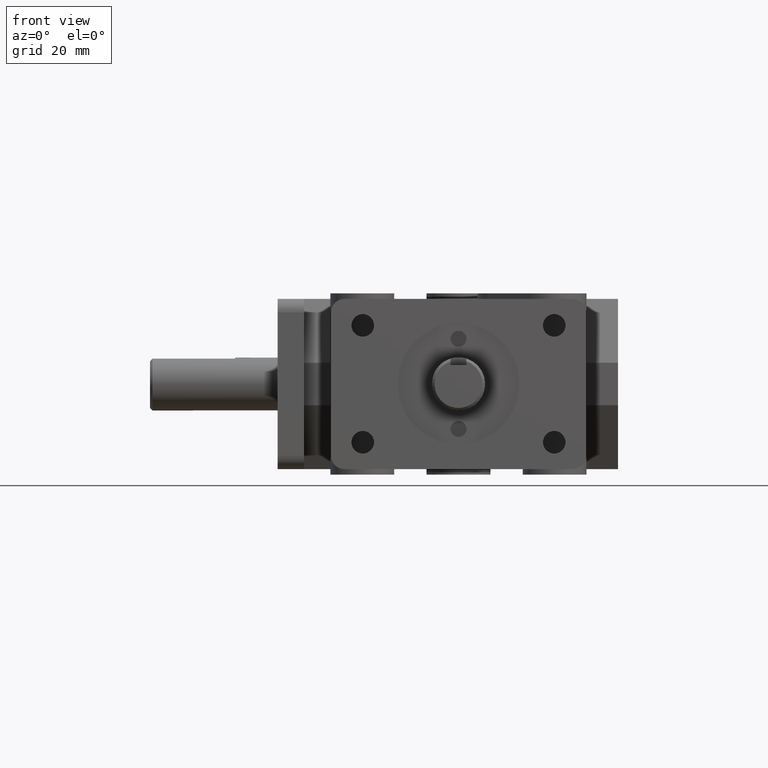
[diagram: clean part render]
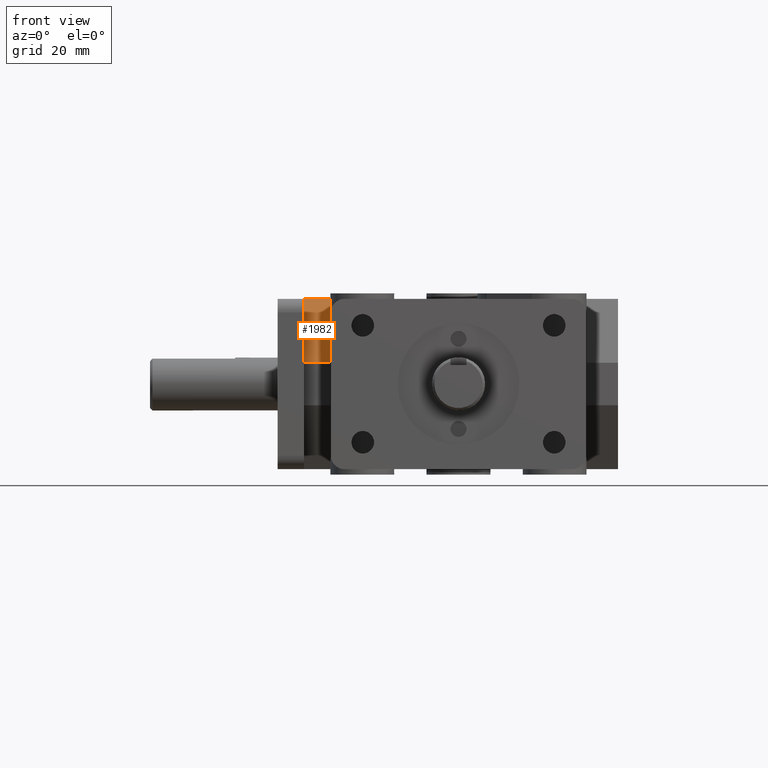
[diagram: same view with one face highlighted and labeled with its STEP entity id]
A machine part, front view. The second image highlights one B-rep face of the part: STEP entity #1982.
In plain terms, the highlighted planar face has unit normal (0, -0.866, 0.5).
Its self-contained STEP definition (entity closure, byte-faithful):
#97=PLANE('',#2178);
#200=FACE_OUTER_BOUND('',#329,.T.);
#329=EDGE_LOOP('',(#1675,#1676,#1677,#1678));
#416=LINE('',#2974,#607);
#433=LINE('',#3017,#624);
#527=LINE('',#3273,#718);
#528=LINE('',#3274,#719);
#607=VECTOR('',#2400,1.);
#624=VECTOR('',#2431,1.);
#718=VECTOR('',#2663,1.);
#719=VECTOR('',#2664,1.);
#909=VERTEX_POINT('',#2971);
#910=VERTEX_POINT('',#2973);
#929=VERTEX_POINT('',#3016);
#1010=VERTEX_POINT('',#3272);
#1108=EDGE_CURVE('',#910,#909,#416,.F.);
#1131=EDGE_CURVE('',#929,#910,#433,.T.);
#1255=EDGE_CURVE('',#1010,#929,#527,.F.);
#1256=EDGE_CURVE('',#909,#1010,#528,.T.);
#1675=ORIENTED_EDGE('',*,*,#1255,.T.);
#1676=ORIENTED_EDGE('',*,*,#1131,.T.);
#1677=ORIENTED_EDGE('',*,*,#1108,.T.);
#1678=ORIENTED_EDGE('',*,*,#1256,.T.);
#1982=ADVANCED_FACE('',(#200),#97,.T.);
#2178=AXIS2_PLACEMENT_3D('',#3271,#2661,#2662);
#2400=DIRECTION('',(0.,0.500000258168844,0.866025254730536));
#2431=DIRECTION('',(-1.,0.,0.));
#2661=DIRECTION('center_axis',(0.,-0.866025254730536,0.500000258168844));
#2662=DIRECTION('ref_axis',(0.,0.500000258168844,0.866025254730536));
#2663=DIRECTION('',(0.,-0.500000258168844,-0.866025254730536));
#2664=DIRECTION('',(1.,0.,0.));
#2971=CARTESIAN_POINT('',(-1.815,2.3125,0.25));
#2973=CARTESIAN_POINT('',(-1.815,2.745513,1.));
#2974=CARTESIAN_POINT('',(-1.815,2.29631407102174,0.221965167942549));
#3016=CARTESIAN_POINT('',(-1.505,2.745513,1.));
#3017=CARTESIAN_POINT('',(-0.9075,2.745513,1.));
#3271=CARTESIAN_POINT('Origin',(-0.9075,2.5290065,0.625));
#3272=CARTESIAN_POINT('',(-1.505,2.3125,0.25));
#3273=CARTESIAN_POINT('',(-1.505,2.36662664363175,0.343750032271114));
#3274=CARTESIAN_POINT('',(-0.9075,2.3125,0.25));